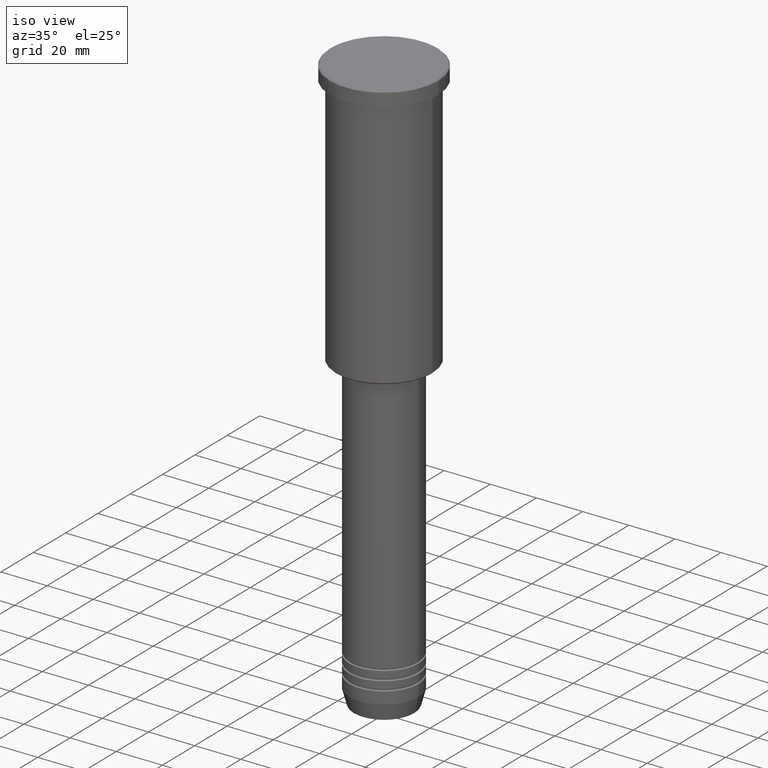
[diagram: clean part render]
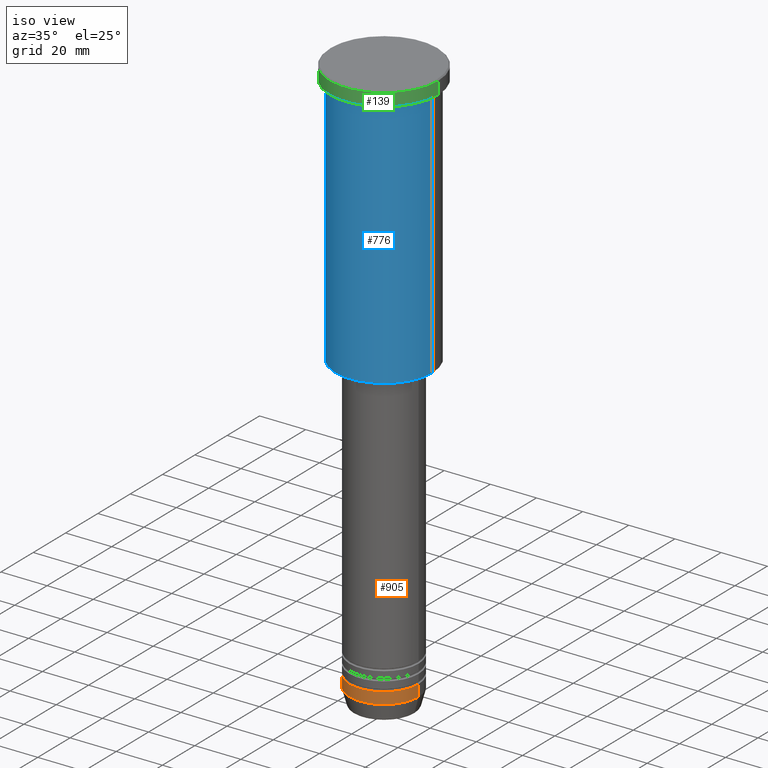
[diagram: same view with three faces highlighted in distinct colors, each labeled with its STEP entity id]
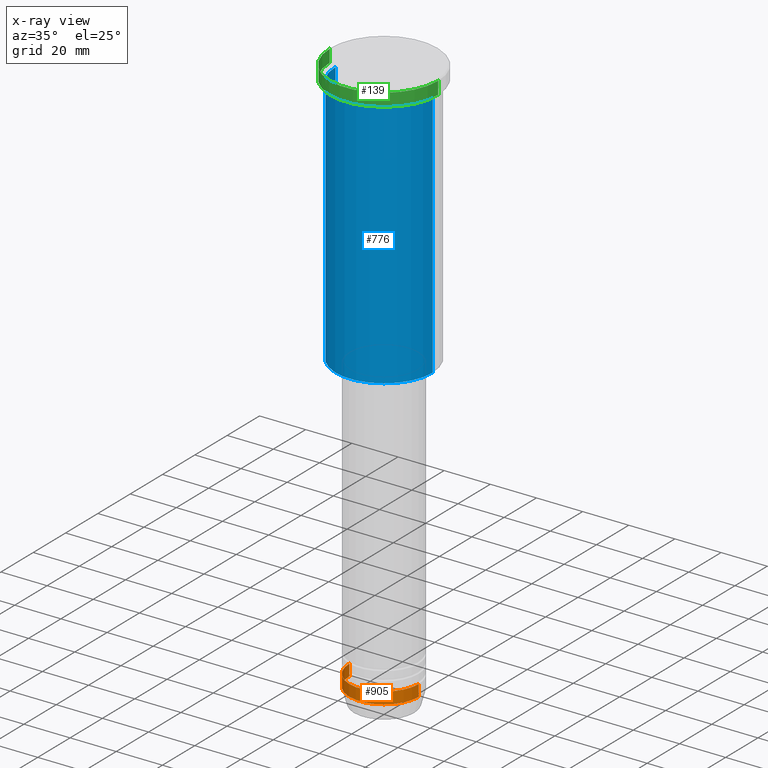
[diagram: x-ray of the same camera — body ghosted, the three highlighted faces saturated]
A machine part, iso view with three faces highlighted in distinct colors.
The next image is the same camera in x-ray (body ghosted, the three faces saturated) — at least one of them is partly hidden behind the body in this view.
Their STEP definitions:

[orange] entity #905 — the highlighted cylindrical surface (partial cylindrical patch) has radius 15 mm, axis along (-0, -0, 1).
#22 = CARTESIAN_POINT ( 'NONE',  ( 15.00000000000000000, 0.000000000000000000, -244.0000000000000000 ) ) ;
#49 = EDGE_LOOP ( 'NONE', ( #294, #321, #1132, #546 ) ) ;
#130 = CARTESIAN_POINT ( 'NONE',  ( 15.00000000000000000, 0.000000000000000000, -239.0000000000000284 ) ) ;
#191 = EDGE_CURVE ( 'NONE', #502, #429, #866, .T. ) ;
#200 = VERTEX_POINT ( 'NONE', #745 ) ;
#212 = EDGE_CURVE ( 'NONE', #200, #739, #363, .T. ) ;
#251 = FACE_OUTER_BOUND ( 'NONE', #49, .T. ) ;
#264 = DIRECTION ( 'NONE',  ( -0.000000000000000000, -0.000000000000000000, 1.000000000000000000 ) ) ;
#294 = ORIENTED_EDGE ( 'NONE', *, *, #510, .F. ) ;
#299 = LINE ( 'NONE', #930, #898 ) ;
#321 = ORIENTED_EDGE ( 'NONE', *, *, #212, .T. ) ;
#322 = AXIS2_PLACEMENT_3D ( 'NONE', #472, #914, #926 ) ;
#363 = CIRCLE ( 'NONE', #322, 15.00000000000000000 ) ;
#429 = VERTEX_POINT ( 'NONE', #130 ) ;
#431 = LINE ( 'NONE', #989, #1013 ) ;
#472 = CARTESIAN_POINT ( 'NONE',  ( 0.000000000000000000, 0.000000000000000000, -244.0000000000000000 ) ) ;
#502 = VERTEX_POINT ( 'NONE', #894 ) ;
#510 = EDGE_CURVE ( 'NONE', #200, #502, #431, .T. ) ;
#512 = CYLINDRICAL_SURFACE ( 'NONE', #1028, 15.00000000000000000 ) ;
#520 = CARTESIAN_POINT ( 'NONE',  ( 0.000000000000000000, 0.000000000000000000, 0.000000000000000000 ) ) ;
#526 = DIRECTION ( 'NONE',  ( 1.000000000000000000, 0.000000000000000000, 0.000000000000000000 ) ) ;
#546 = ORIENTED_EDGE ( 'NONE', *, *, #191, .F. ) ;
#694 = DIRECTION ( 'NONE',  ( -0.000000000000000000, -0.000000000000000000, 1.000000000000000000 ) ) ;
#739 = VERTEX_POINT ( 'NONE', #22 ) ;
#745 = CARTESIAN_POINT ( 'NONE',  ( -15.00000000000000000, 1.836970198721029589E-15, -244.0000000000000000 ) ) ;
#853 = EDGE_CURVE ( 'NONE', #739, #429, #299, .T. ) ;
#863 = AXIS2_PLACEMENT_3D ( 'NONE', #1010, #931, #1089 ) ;
#866 = CIRCLE ( 'NONE', #863, 15.00000000000000000 ) ;
#894 = CARTESIAN_POINT ( 'NONE',  ( -15.00000000000000000, 1.836970198721029589E-15, -239.0000000000000284 ) ) ;
#898 = VECTOR ( 'NONE', #1136, 1000.000000000000000 ) ;
#905 = ADVANCED_FACE ( 'NONE', ( #251 ), #512, .T. ) ;
#914 = DIRECTION ( 'NONE',  ( -0.000000000000000000, -0.000000000000000000, 1.000000000000000000 ) ) ;
#926 = DIRECTION ( 'NONE',  ( 1.000000000000000000, 0.000000000000000000, 0.000000000000000000 ) ) ;
#930 = CARTESIAN_POINT ( 'NONE',  ( 15.00000000000000000, 0.000000000000000000, 0.000000000000000000 ) ) ;
#931 = DIRECTION ( 'NONE',  ( -0.000000000000000000, -0.000000000000000000, 1.000000000000000000 ) ) ;
#989 = CARTESIAN_POINT ( 'NONE',  ( -15.00000000000000000, 1.836970198721029589E-15, 0.000000000000000000 ) ) ;
#1010 = CARTESIAN_POINT ( 'NONE',  ( 0.000000000000000000, 0.000000000000000000, -239.0000000000000284 ) ) ;
#1013 = VECTOR ( 'NONE', #264, 1000.000000000000000 ) ;
#1028 = AXIS2_PLACEMENT_3D ( 'NONE', #520, #694, #526 ) ;
#1089 = DIRECTION ( 'NONE',  ( 1.000000000000000000, 0.000000000000000000, 0.000000000000000000 ) ) ;
#1132 = ORIENTED_EDGE ( 'NONE', *, *, #853, .T. ) ;
#1136 = DIRECTION ( 'NONE',  ( -0.000000000000000000, -0.000000000000000000, 1.000000000000000000 ) ) ;

[blue] entity #776 — the highlighted cylindrical surface (partial cylindrical patch) has radius 21 mm, axis along (-0, -0, 1).
#50 = VECTOR ( 'NONE', #371, 1000.000000000000000 ) ;
#78 = ORIENTED_EDGE ( 'NONE', *, *, #373, .F. ) ;
#85 = LINE ( 'NONE', #653, #50 ) ;
#121 = DIRECTION ( 'NONE',  ( -0.000000000000000000, -0.000000000000000000, 1.000000000000000000 ) ) ;
#199 = DIRECTION ( 'NONE',  ( -0.000000000000000000, -0.000000000000000000, 1.000000000000000000 ) ) ;
#207 = AXIS2_PLACEMENT_3D ( 'NONE', #769, #493, #568 ) ;
#210 = CIRCLE ( 'NONE', #825, 21.00000000000000000 ) ;
#223 = CARTESIAN_POINT ( 'NONE',  ( 0.000000000000000000, 0.000000000000000000, -6.999999999999993783 ) ) ;
#265 = EDGE_CURVE ( 'NONE', #659, #642, #210, .T. ) ;
#269 = VERTEX_POINT ( 'NONE', #1182 ) ;
#272 = CIRCLE ( 'NONE', #290, 21.00000000000000000 ) ;
#290 = AXIS2_PLACEMENT_3D ( 'NONE', #223, #121, #1035 ) ;
#292 = VECTOR ( 'NONE', #937, 1000.000000000000000 ) ;
#303 = CARTESIAN_POINT ( 'NONE',  ( -21.00000000000000000, 2.571758278209441661E-15, 0.000000000000000000 ) ) ;
#325 = EDGE_LOOP ( 'NONE', ( #1172, #637, #459, #78 ) ) ;
#371 = DIRECTION ( 'NONE',  ( -0.000000000000000000, -0.000000000000000000, 1.000000000000000000 ) ) ;
#372 = DIRECTION ( 'NONE',  ( -1.000000000000000000, 0.000000000000000000, 0.000000000000000000 ) ) ;
#373 = EDGE_CURVE ( 'NONE', #269, #477, #272, .T. ) ;
#459 = ORIENTED_EDGE ( 'NONE', *, *, #704, .T. ) ;
#477 = VERTEX_POINT ( 'NONE', #890 ) ;
#493 = DIRECTION ( 'NONE',  ( -0.000000000000000000, -0.000000000000000000, 1.000000000000000000 ) ) ;
#568 = DIRECTION ( 'NONE',  ( 1.000000000000000000, 0.000000000000000000, 0.000000000000000000 ) ) ;
#637 = ORIENTED_EDGE ( 'NONE', *, *, #265, .T. ) ;
#642 = VERTEX_POINT ( 'NONE', #823 ) ;
#653 = CARTESIAN_POINT ( 'NONE',  ( 21.00000000000000000, 0.000000000000000000, 0.000000000000000000 ) ) ;
#659 = VERTEX_POINT ( 'NONE', #736 ) ;
#704 = EDGE_CURVE ( 'NONE', #642, #477, #85, .T. ) ;
#736 = CARTESIAN_POINT ( 'NONE',  ( -21.00000000000000000, 2.571758278209441661E-15, -115.4999999999999432 ) ) ;
#756 = LINE ( 'NONE', #303, #292 ) ;
#769 = CARTESIAN_POINT ( 'NONE',  ( 0.000000000000000000, 0.000000000000000000, 0.000000000000000000 ) ) ;
#776 = ADVANCED_FACE ( 'NONE', ( #852 ), #1115, .T. ) ;
#823 = CARTESIAN_POINT ( 'NONE',  ( 21.00000000000000000, 0.000000000000000000, -115.4999999999999432 ) ) ;
#824 = CARTESIAN_POINT ( 'NONE',  ( 0.000000000000000000, 0.000000000000000000, -115.4999999999999432 ) ) ;
#825 = AXIS2_PLACEMENT_3D ( 'NONE', #824, #199, #372 ) ;
#852 = FACE_OUTER_BOUND ( 'NONE', #325, .T. ) ;
#874 = EDGE_CURVE ( 'NONE', #659, #269, #756, .T. ) ;
#890 = CARTESIAN_POINT ( 'NONE',  ( 21.00000000000000000, 0.000000000000000000, -6.999999999999993783 ) ) ;
#937 = DIRECTION ( 'NONE',  ( -0.000000000000000000, -0.000000000000000000, 1.000000000000000000 ) ) ;
#1035 = DIRECTION ( 'NONE',  ( 1.000000000000000000, 0.000000000000000000, 0.000000000000000000 ) ) ;
#1115 = CYLINDRICAL_SURFACE ( 'NONE', #207, 21.00000000000000000 ) ;
#1172 = ORIENTED_EDGE ( 'NONE', *, *, #874, .F. ) ;
#1182 = CARTESIAN_POINT ( 'NONE',  ( -21.00000000000000000, 2.571758278209441661E-15, -6.999999999999993783 ) ) ;

[green] entity #139 — the highlighted cylindrical surface (partial cylindrical patch) has radius 23.5 mm, axis along (-0, -0, 1).
#1 = ORIENTED_EDGE ( 'NONE', *, *, #239, .T. ) ;
#24 = EDGE_LOOP ( 'NONE', ( #410, #1, #87, #90 ) ) ;
#39 = DIRECTION ( 'NONE',  ( 0.000000000000000000, 0.000000000000000000, -1.000000000000000000 ) ) ;
#57 = CARTESIAN_POINT ( 'NONE',  ( -23.50000000000000000, 2.877919977996280320E-15, 0.000000000000000000 ) ) ;
#67 = LINE ( 'NONE', #57, #995 ) ;
#70 = AXIS2_PLACEMENT_3D ( 'NONE', #1038, #39, #125 ) ;
#75 = VECTOR ( 'NONE', #508, 1000.000000000000000 ) ;
#87 = ORIENTED_EDGE ( 'NONE', *, *, #356, .T. ) ;
#90 = ORIENTED_EDGE ( 'NONE', *, *, #750, .T. ) ;
#125 = DIRECTION ( 'NONE',  ( 1.000000000000000000, 0.000000000000000000, 0.000000000000000000 ) ) ;
#139 = ADVANCED_FACE ( 'NONE', ( #815 ), #149, .T. ) ;
#141 = VERTEX_POINT ( 'NONE', #662 ) ;
#149 = CYLINDRICAL_SURFACE ( 'NONE', #916, 23.50000000000000000 ) ;
#165 = VERTEX_POINT ( 'NONE', #841 ) ;
#173 = CIRCLE ( 'NONE', #590, 23.50000000000000000 ) ;
#230 = CARTESIAN_POINT ( 'NONE',  ( 23.50000000000000000, 0.000000000000000000, -0.4999999999999726885 ) ) ;
#239 = EDGE_CURVE ( 'NONE', #141, #357, #173, .T. ) ;
#356 = EDGE_CURVE ( 'NONE', #357, #1004, #757, .T. ) ;
#357 = VERTEX_POINT ( 'NONE', #589 ) ;
#391 = CARTESIAN_POINT ( 'NONE',  ( 23.50000000000000000, 0.000000000000000000, 0.000000000000000000 ) ) ;
#410 = ORIENTED_EDGE ( 'NONE', *, *, #521, .F. ) ;
#481 = CARTESIAN_POINT ( 'NONE',  ( 0.000000000000000000, 0.000000000000000000, -5.999999999999993783 ) ) ;
#508 = DIRECTION ( 'NONE',  ( -0.000000000000000000, -0.000000000000000000, 1.000000000000000000 ) ) ;
#515 = CARTESIAN_POINT ( 'NONE',  ( 0.000000000000000000, 0.000000000000000000, 0.000000000000000000 ) ) ;
#521 = EDGE_CURVE ( 'NONE', #141, #165, #67, .T. ) ;
#545 = DIRECTION ( 'NONE',  ( -0.000000000000000000, -0.000000000000000000, 1.000000000000000000 ) ) ;
#589 = CARTESIAN_POINT ( 'NONE',  ( 23.50000000000000000, 0.000000000000000000, -5.999999999999993783 ) ) ;
#590 = AXIS2_PLACEMENT_3D ( 'NONE', #481, #545, #830 ) ;
#628 = CIRCLE ( 'NONE', #70, 23.50000000000000000 ) ;
#640 = DIRECTION ( 'NONE',  ( -0.000000000000000000, -0.000000000000000000, 1.000000000000000000 ) ) ;
#662 = CARTESIAN_POINT ( 'NONE',  ( -23.50000000000000000, 2.877919977996280320E-15, -5.999999999999993783 ) ) ;
#729 = DIRECTION ( 'NONE',  ( 1.000000000000000000, 0.000000000000000000, 0.000000000000000000 ) ) ;
#750 = EDGE_CURVE ( 'NONE', #1004, #165, #628, .T. ) ;
#757 = LINE ( 'NONE', #391, #75 ) ;
#794 = DIRECTION ( 'NONE',  ( -0.000000000000000000, -0.000000000000000000, 1.000000000000000000 ) ) ;
#815 = FACE_OUTER_BOUND ( 'NONE', #24, .T. ) ;
#830 = DIRECTION ( 'NONE',  ( 1.000000000000000000, 0.000000000000000000, 0.000000000000000000 ) ) ;
#841 = CARTESIAN_POINT ( 'NONE',  ( -23.50000000000000000, 2.877919977996280320E-15, -0.4999999999999726885 ) ) ;
#916 = AXIS2_PLACEMENT_3D ( 'NONE', #515, #640, #729 ) ;
#995 = VECTOR ( 'NONE', #794, 1000.000000000000000 ) ;
#1004 = VERTEX_POINT ( 'NONE', #230 ) ;
#1038 = CARTESIAN_POINT ( 'NONE',  ( 0.000000000000000000, 0.000000000000000000, -0.4999999999999726885 ) ) ;